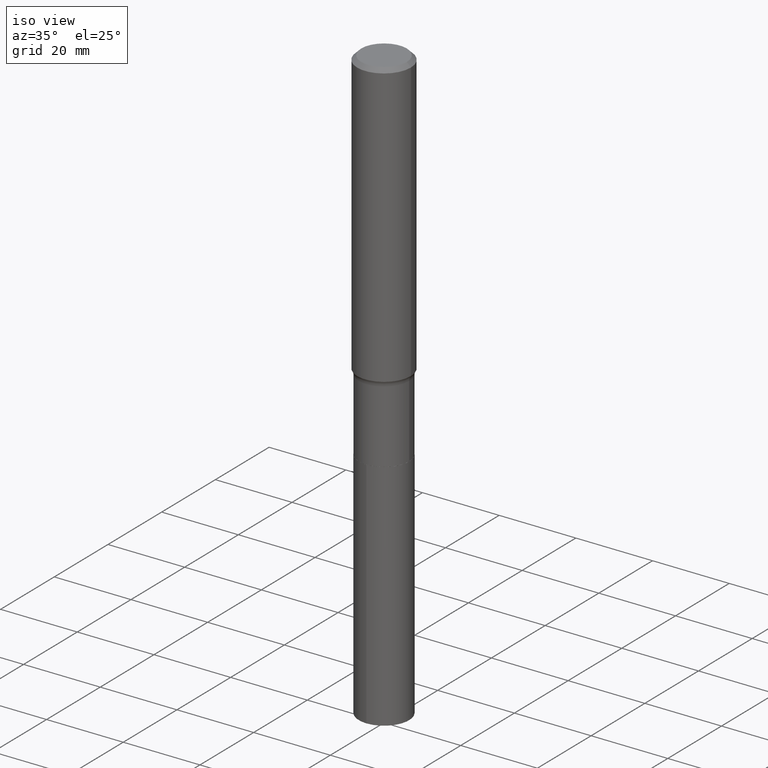
[diagram: clean part render]
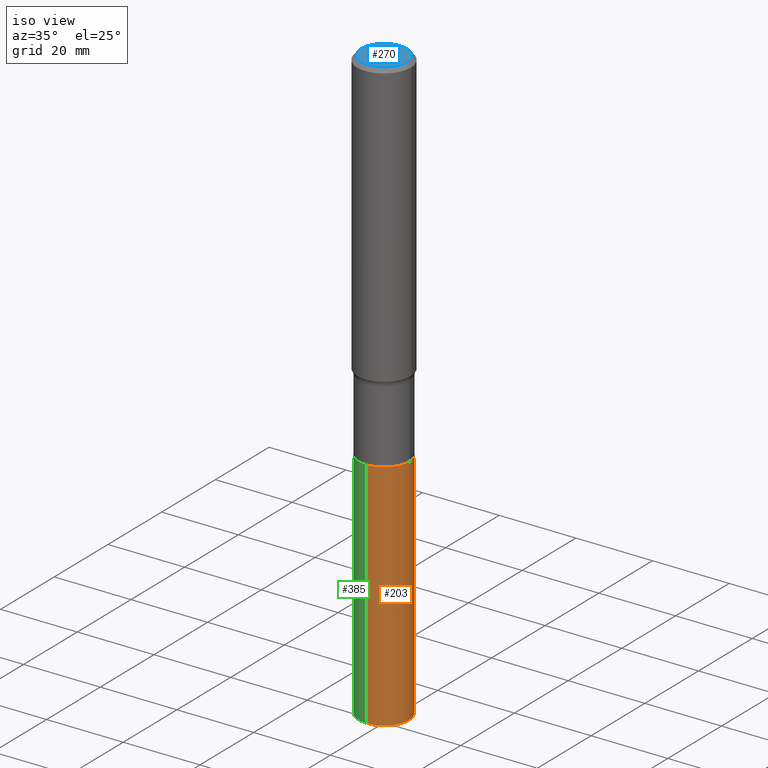
[diagram: same view with three faces highlighted in distinct colors, each labeled with its STEP entity id]
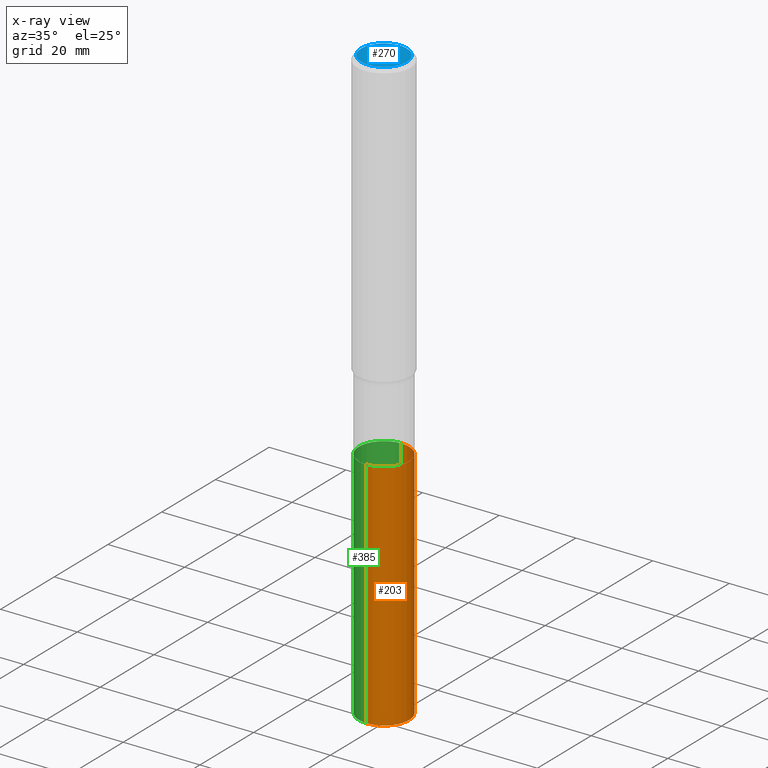
[diagram: x-ray of the same camera — body ghosted, the three highlighted faces saturated]
A machine part, iso view with three faces highlighted in distinct colors.
The next image is the same camera in x-ray (body ghosted, the three faces saturated) — at least one of them is partly hidden behind the body in this view.
Their STEP definitions:

[orange] entity #203 — the highlighted cylindrical surface (edge-blend (fillet) strip) has radius 6.5481 mm, axis along (-0, 0, 1).
#5 = DIRECTION ( 'NONE',  ( -2.445055770018104972E-29, 3.492072830142893324E-15, 1.000000000000000000 ) ) ;
#15 = CIRCLE ( 'NONE', #252, 0.2577999999999999736 ) ;
#16 = VERTEX_POINT ( 'NONE', #303 ) ;
#18 = CARTESIAN_POINT ( 'NONE',  ( -1.800207778307428842E-15, -0.2578000000000129077, -3.701399999999999135 ) ) ;
#28 = DIRECTION ( 'NONE',  ( -6.982962677686265922E-15, -1.000000000000000000, 4.238709066973255853E-15 ) ) ;
#29 = FACE_OUTER_BOUND ( 'NONE', #420, .T. ) ;
#33 = DIRECTION ( 'NONE',  ( -2.445055770018105252E-29, 3.492072830142893324E-15, 1.000000000000000000 ) ) ;
#47 = ORIENTED_EDGE ( 'NONE', *, *, #182, .F. ) ;
#61 = CIRCLE ( 'NONE', #267, 0.2577999999999999736 ) ;
#102 = DIRECTION ( 'NONE',  ( -6.982962677686265922E-15, -1.000000000000000000, 4.238709066973255853E-15 ) ) ;
#104 = CARTESIAN_POINT ( 'NONE',  ( 9.051658239213665252E-29, -1.292336902759401938E-14, -3.701400000000000023 ) ) ;
#136 = DIRECTION ( 'NONE',  ( -6.982962677686265922E-15, -1.000000000000000000, 4.238709066973255853E-15 ) ) ;
#164 = CARTESIAN_POINT ( 'NONE',  ( 1.831779172789657604E-15, 0.2577999999999786573, -6.102399999999998492 ) ) ;
#166 = CARTESIAN_POINT ( 'NONE',  ( 9.051658239213665252E-29, -1.292336902759401938E-14, -3.701400000000000023 ) ) ;
#177 = CARTESIAN_POINT ( 'NONE',  ( -1.800207778307428842E-15, -0.2578000000000129077, -3.701399999999999135 ) ) ;
#182 = EDGE_CURVE ( 'NONE', #445, #442, #15, .T. ) ;
#203 = ADVANCED_FACE ( 'NONE', ( #29 ), #468, .T. ) ;
#214 = AXIS2_PLACEMENT_3D ( 'NONE', #166, #314, #102 ) ;
#219 = LINE ( 'NONE', #177, #431 ) ;
#229 = EDGE_CURVE ( 'NONE', #16, #233, #61, .T. ) ;
#233 = VERTEX_POINT ( 'NONE', #164 ) ;
#252 = AXIS2_PLACEMENT_3D ( 'NONE', #104, #351, #28 ) ;
#267 = AXIS2_PLACEMENT_3D ( 'NONE', #315, #33, #136 ) ;
#287 = ORIENTED_EDGE ( 'NONE', *, *, #229, .T. ) ;
#289 = EDGE_CURVE ( 'NONE', #233, #442, #366, .T. ) ;
#294 = ORIENTED_EDGE ( 'NONE', *, *, #289, .T. ) ;
#303 = CARTESIAN_POINT ( 'NONE',  ( -1.800207778307370072E-15, -0.2578000000000212899, -6.102399999999996716 ) ) ;
#306 = CARTESIAN_POINT ( 'NONE',  ( 1.831779172789687186E-15, 0.2577999999999870395, -3.701400000000000912 ) ) ;
#307 = VECTOR ( 'NONE', #5, 39.37007874015748143 ) ;
#314 = DIRECTION ( 'NONE',  ( -2.445055770018105252E-29, 3.492072830142893324E-15, 1.000000000000000000 ) ) ;
#315 = CARTESIAN_POINT ( 'NONE',  ( 1.492223714302713032E-28, -2.130783589276709952E-14, -6.102399999999997604 ) ) ;
#325 = DIRECTION ( 'NONE',  ( -2.445055770018104972E-29, 3.492072830142893324E-15, 1.000000000000000000 ) ) ;
#326 = EDGE_CURVE ( 'NONE', #16, #445, #219, .T. ) ;
#329 = CARTESIAN_POINT ( 'NONE',  ( 1.831779172789628416E-15, 0.2577999999999870950, -3.701400000000000912 ) ) ;
#351 = DIRECTION ( 'NONE',  ( -2.445055770018105252E-29, 3.492072830142893324E-15, 1.000000000000000000 ) ) ;
#366 = LINE ( 'NONE', #329, #307 ) ;
#420 = EDGE_LOOP ( 'NONE', ( #287, #294, #47, #455 ) ) ;
#431 = VECTOR ( 'NONE', #325, 39.37007874015748143 ) ;
#442 = VERTEX_POINT ( 'NONE', #306 ) ;
#445 = VERTEX_POINT ( 'NONE', #18 ) ;
#455 = ORIENTED_EDGE ( 'NONE', *, *, #326, .F. ) ;
#468 = CYLINDRICAL_SURFACE ( 'NONE', #214, 0.2577999999999999736 ) ;

[blue] entity #270 — the highlighted planar face has unit normal (0, -0, -1).
#2 = AXIS2_PLACEMENT_3D ( 'NONE', #57, #272, #231 ) ;
#3 = AXIS2_PLACEMENT_3D ( 'NONE', #175, #217, #361 ) ;
#11 = CARTESIAN_POINT ( 'NONE',  ( -0.2342600000000000238, 1.707997756148671759E-15, 4.101342130332794026E-18 ) ) ;
#21 = ORIENTED_EDGE ( 'NONE', *, *, #50, .T. ) ;
#50 = EDGE_CURVE ( 'NONE', #187, #330, #105, .T. ) ;
#57 = CARTESIAN_POINT ( 'NONE',  ( -1.002970424325033577E-46, 1.431975951230896486E-32, 4.101342130344485961E-18 ) ) ;
#79 = DIRECTION ( 'NONE',  ( 1.000000000000000000, -6.982962677686267499E-15, 4.876157962347795834E-29 ) ) ;
#105 = CIRCLE ( 'NONE', #2, 0.2342600000000000238 ) ;
#114 = PLANE ( 'NONE',  #3 ) ;
#165 = CARTESIAN_POINT ( 'NONE',  ( 0.2342600000000000238, -1.821115673845785155E-15, 4.101342130356573868E-18 ) ) ;
#175 = CARTESIAN_POINT ( 'NONE',  ( -5.014852121625167883E-47, 7.159879756154482429E-33, 2.050671065172242981E-18 ) ) ;
#179 = CIRCLE ( 'NONE', #348, 0.2342600000000000238 ) ;
#187 = VERTEX_POINT ( 'NONE', #165 ) ;
#217 = DIRECTION ( 'NONE',  ( 2.438088387897960049E-29, -3.491481338843145188E-15, -1.000000000000000000 ) ) ;
#231 = DIRECTION ( 'NONE',  ( 1.000000000000000000, -6.982962677686267499E-15, 4.876157962347795834E-29 ) ) ;
#255 = ORIENTED_EDGE ( 'NONE', *, *, #282, .T. ) ;
#257 = CARTESIAN_POINT ( 'NONE',  ( -1.002970424325033577E-46, 1.431975951230896486E-32, 4.101342130344485961E-18 ) ) ;
#264 = EDGE_LOOP ( 'NONE', ( #255, #21 ) ) ;
#270 = ADVANCED_FACE ( 'NONE', ( #319 ), #114, .F. ) ;
#272 = DIRECTION ( 'NONE',  ( -2.445468806185136597E-29, 3.491481338843145583E-15, 1.000000000000000000 ) ) ;
#282 = EDGE_CURVE ( 'NONE', #330, #187, #179, .T. ) ;
#288 = DIRECTION ( 'NONE',  ( -2.445468806185136597E-29, 3.491481338843145583E-15, 1.000000000000000000 ) ) ;
#319 = FACE_OUTER_BOUND ( 'NONE', #264, .T. ) ;
#330 = VERTEX_POINT ( 'NONE', #11 ) ;
#348 = AXIS2_PLACEMENT_3D ( 'NONE', #257, #288, #79 ) ;
#361 = DIRECTION ( 'NONE',  ( -1.000000000000000000, 6.982962677686265922E-15, -4.876176775795935793E-29 ) ) ;

[green] entity #385 — the highlighted cylindrical surface (edge-blend (fillet) strip) has radius 6.5481 mm, axis along (-0, 0, 1).
#5 = DIRECTION ( 'NONE',  ( -2.445055770018104972E-29, 3.492072830142893324E-15, 1.000000000000000000 ) ) ;
#16 = VERTEX_POINT ( 'NONE', #303 ) ;
#18 = CARTESIAN_POINT ( 'NONE',  ( -1.800207778307428842E-15, -0.2578000000000129077, -3.701399999999999135 ) ) ;
#34 = DIRECTION ( 'NONE',  ( -2.445055770018105252E-29, 3.492072830142893324E-15, 1.000000000000000000 ) ) ;
#38 = CARTESIAN_POINT ( 'NONE',  ( 9.051658239213665252E-29, -1.292336902759401938E-14, -3.701400000000000023 ) ) ;
#76 = AXIS2_PLACEMENT_3D ( 'NONE', #109, #401, #215 ) ;
#109 = CARTESIAN_POINT ( 'NONE',  ( 9.051658239213665252E-29, -1.292336902759401938E-14, -3.701400000000000023 ) ) ;
#113 = ORIENTED_EDGE ( 'NONE', *, *, #400, .F. ) ;
#121 = ORIENTED_EDGE ( 'NONE', *, *, #289, .F. ) ;
#137 = AXIS2_PLACEMENT_3D ( 'NONE', #291, #34, #256 ) ;
#155 = ORIENTED_EDGE ( 'NONE', *, *, #379, .T. ) ;
#164 = CARTESIAN_POINT ( 'NONE',  ( 1.831779172789657604E-15, 0.2577999999999786573, -6.102399999999998492 ) ) ;
#167 = CIRCLE ( 'NONE', #76, 0.2577999999999999736 ) ;
#171 = FACE_OUTER_BOUND ( 'NONE', #195, .T. ) ;
#174 = DIRECTION ( 'NONE',  ( -2.445055770018105252E-29, 3.492072830142893324E-15, 1.000000000000000000 ) ) ;
#177 = CARTESIAN_POINT ( 'NONE',  ( -1.800207778307428842E-15, -0.2578000000000129077, -3.701399999999999135 ) ) ;
#195 = EDGE_LOOP ( 'NONE', ( #121, #155, #416, #113 ) ) ;
#215 = DIRECTION ( 'NONE',  ( -6.982962677686265922E-15, -1.000000000000000000, 4.238709066973255853E-15 ) ) ;
#219 = LINE ( 'NONE', #177, #431 ) ;
#232 = AXIS2_PLACEMENT_3D ( 'NONE', #38, #174, #250 ) ;
#233 = VERTEX_POINT ( 'NONE', #164 ) ;
#250 = DIRECTION ( 'NONE',  ( -6.982962677686265922E-15, -1.000000000000000000, 4.238709066973255853E-15 ) ) ;
#256 = DIRECTION ( 'NONE',  ( -6.982962677686265922E-15, -1.000000000000000000, 4.238709066973255853E-15 ) ) ;
#275 = CIRCLE ( 'NONE', #137, 0.2577999999999999736 ) ;
#289 = EDGE_CURVE ( 'NONE', #233, #442, #366, .T. ) ;
#291 = CARTESIAN_POINT ( 'NONE',  ( 1.492223714302713032E-28, -2.130783589276709952E-14, -6.102399999999997604 ) ) ;
#303 = CARTESIAN_POINT ( 'NONE',  ( -1.800207778307370072E-15, -0.2578000000000212899, -6.102399999999996716 ) ) ;
#306 = CARTESIAN_POINT ( 'NONE',  ( 1.831779172789687186E-15, 0.2577999999999870395, -3.701400000000000912 ) ) ;
#307 = VECTOR ( 'NONE', #5, 39.37007874015748143 ) ;
#325 = DIRECTION ( 'NONE',  ( -2.445055770018104972E-29, 3.492072830142893324E-15, 1.000000000000000000 ) ) ;
#326 = EDGE_CURVE ( 'NONE', #16, #445, #219, .T. ) ;
#329 = CARTESIAN_POINT ( 'NONE',  ( 1.831779172789628416E-15, 0.2577999999999870950, -3.701400000000000912 ) ) ;
#358 = CYLINDRICAL_SURFACE ( 'NONE', #232, 0.2577999999999999736 ) ;
#366 = LINE ( 'NONE', #329, #307 ) ;
#379 = EDGE_CURVE ( 'NONE', #233, #16, #275, .T. ) ;
#385 = ADVANCED_FACE ( 'NONE', ( #171 ), #358, .T. ) ;
#400 = EDGE_CURVE ( 'NONE', #442, #445, #167, .T. ) ;
#401 = DIRECTION ( 'NONE',  ( -2.445055770018105252E-29, 3.492072830142893324E-15, 1.000000000000000000 ) ) ;
#416 = ORIENTED_EDGE ( 'NONE', *, *, #326, .T. ) ;
#431 = VECTOR ( 'NONE', #325, 39.37007874015748143 ) ;
#442 = VERTEX_POINT ( 'NONE', #306 ) ;
#445 = VERTEX_POINT ( 'NONE', #18 ) ;